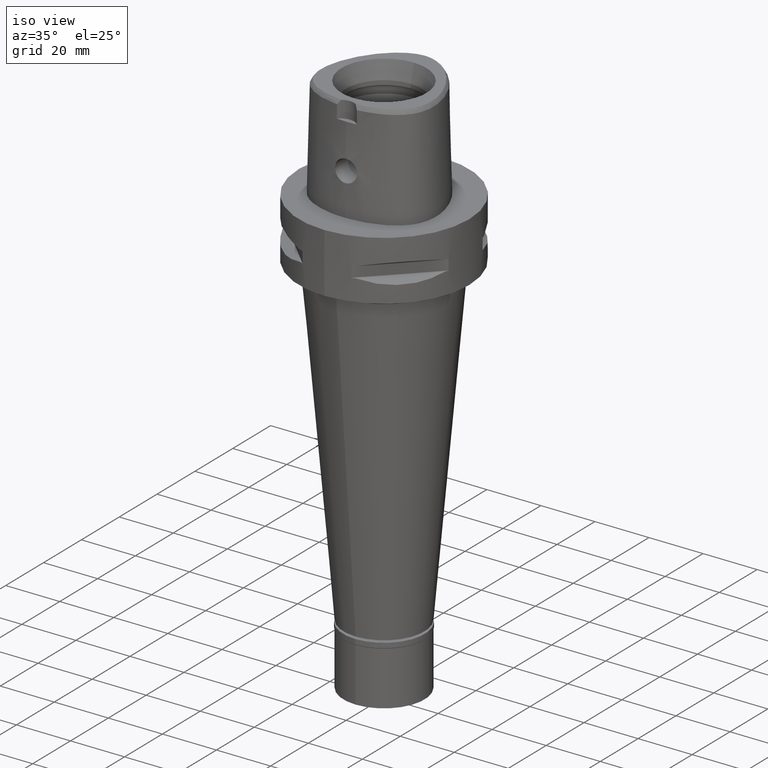
[diagram: clean part render]
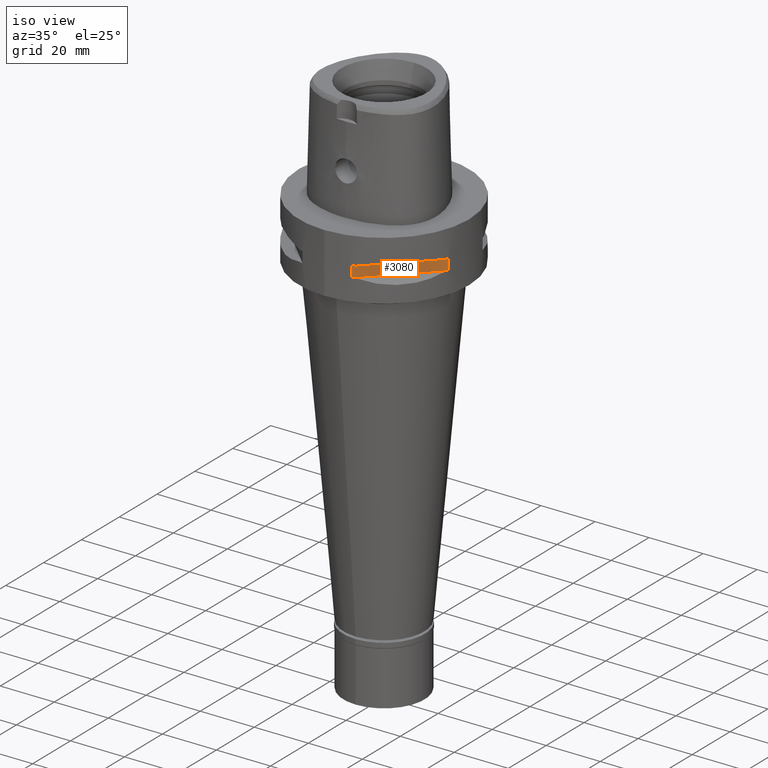
[diagram: same view with one face highlighted and labeled with its STEP entity id]
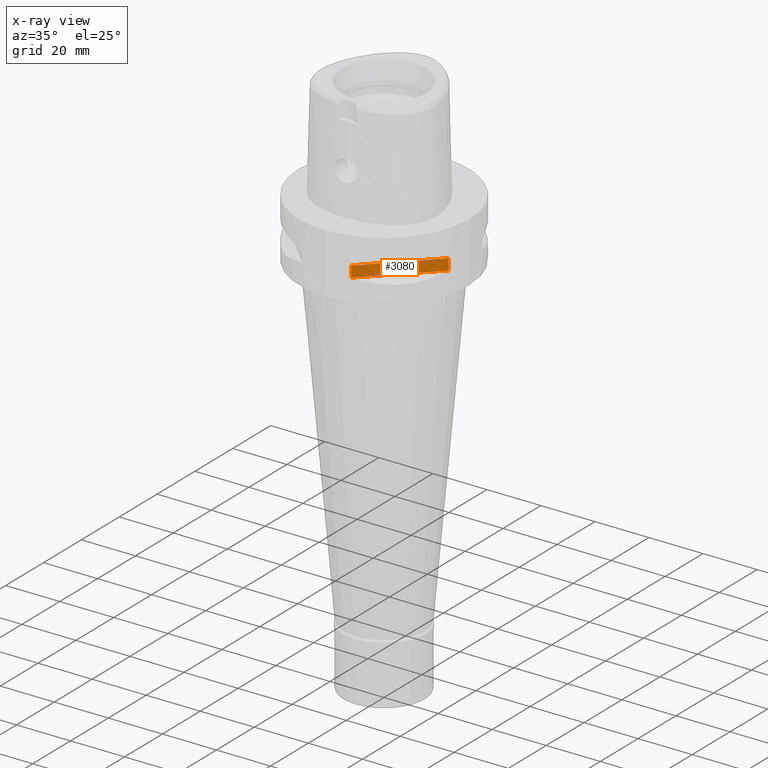
[diagram: x-ray of the same camera — body ghosted, the highlighted face saturated]
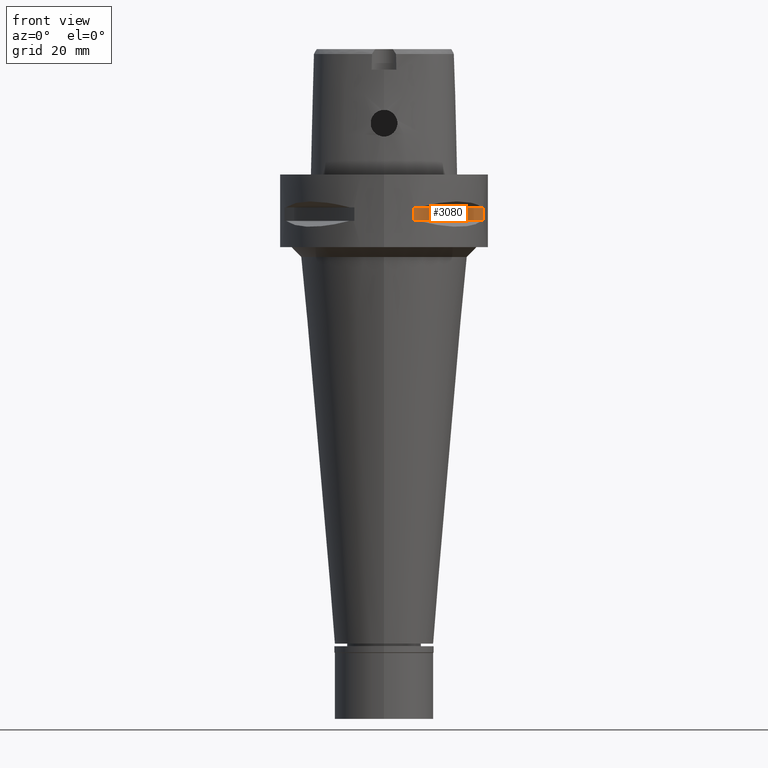
[diagram: same view with one face highlighted and labeled with its STEP entity id]
A machine part, iso view. The second image highlights one B-rep face of the part: STEP entity #3080.
The next image is the same camera in x-ray: the body ghosted, the highlighted face saturated — about 0% of this face is hidden behind the body in this view.
A second angle (front view) of the same face is appended — the face is thin or edge-on in the first view.
In plain terms, the highlighted planar face has unit normal (-0.7071, 0.7071, 0).
Its self-contained STEP definition (entity closure, byte-faithful):
#102 = VERTEX_POINT ( 'NONE', #2441 ) ;
#162 = VECTOR ( 'NONE', #4228, 1000.000000000000000 ) ;
#327 = ORIENTED_EDGE ( 'NONE', *, *, #4623, .F. ) ;
#813 = LINE ( 'NONE', #3086, #4734 ) ;
#912 = VECTOR ( 'NONE', #3252, 1000.000000000000114 ) ;
#1031 = DIRECTION ( 'NONE',  ( -0.7071067811865475727, 0.7071067811865475727, 0.0000000000000000000 ) ) ;
#1071 = AXIS2_PLACEMENT_3D ( 'NONE', #4126, #1031, #3008 ) ;
#1093 = CARTESIAN_POINT ( 'NONE',  ( 8.981198972019999616, -30.19251670572000279, -9.950000000000001066 ) ) ;
#1344 = DIRECTION ( 'NONE',  ( 0.7071067811865474617, 0.7071067811865474617, 0.0000000000000000000 ) ) ;
#1516 = VERTEX_POINT ( 'NONE', #4890 ) ;
#1542 = VECTOR ( 'NONE', #1344, 1000.000000000000114 ) ;
#2111 = EDGE_CURVE ( 'NONE', #1516, #102, #3652, .T. ) ;
#2118 = FACE_OUTER_BOUND ( 'NONE', #3788, .T. ) ;
#2441 = CARTESIAN_POINT ( 'NONE',  ( 30.19251670572000279, -8.981198972019999616, -14.05000000000000071 ) ) ;
#2471 = LINE ( 'NONE', #3963, #912 ) ;
#2572 = EDGE_CURVE ( 'NONE', #102, #4220, #813, .T. ) ;
#2815 = CARTESIAN_POINT ( 'NONE',  ( 8.981198972017999438, -30.19251670572000279, -14.05000000000000071 ) ) ;
#2832 = EDGE_CURVE ( 'NONE', #4881, #1516, #3020, .T. ) ;
#3008 = DIRECTION ( 'NONE',  ( 0.0000000000000000000, 0.0000000000000000000, 1.000000000000000000 ) ) ;
#3020 = LINE ( 'NONE', #3046, #162 ) ;
#3046 = CARTESIAN_POINT ( 'NONE',  ( 8.981198972017999438, -30.19251670572000279, -9.950000000000001066 ) ) ;
#3080 = ADVANCED_FACE ( 'NONE', ( #2118 ), #4098, .F. ) ;
#3086 = CARTESIAN_POINT ( 'NONE',  ( 30.19251670572000279, -8.981198972017999438, -14.05000000000000071 ) ) ;
#3252 = DIRECTION ( 'NONE',  ( 0.7071067811865474617, 0.7071067811865474617, 0.0000000000000000000 ) ) ;
#3564 = CARTESIAN_POINT ( 'NONE',  ( 30.19251670572000279, -8.981198972017999438, -9.950000000000001066 ) ) ;
#3652 = LINE ( 'NONE', #2815, #1542 ) ;
#3788 = EDGE_LOOP ( 'NONE', ( #327, #5019, #4815, #4592 ) ) ;
#3963 = CARTESIAN_POINT ( 'NONE',  ( 8.981198972017999438, -30.19251670572000279, -9.950000000000001066 ) ) ;
#4098 = PLANE ( 'NONE',  #1071 ) ;
#4126 = CARTESIAN_POINT ( 'NONE',  ( 33.72899346260000186, -5.444722215136000187, -9.950000000000001066 ) ) ;
#4220 = VERTEX_POINT ( 'NONE', #3564 ) ;
#4228 = DIRECTION ( 'NONE',  ( 0.0000000000000000000, 0.0000000000000000000, -1.000000000000000000 ) ) ;
#4592 = ORIENTED_EDGE ( 'NONE', *, *, #2572, .T. ) ;
#4623 = EDGE_CURVE ( 'NONE', #4881, #4220, #2471, .T. ) ;
#4682 = DIRECTION ( 'NONE',  ( 0.0000000000000000000, 0.0000000000000000000, 1.000000000000000000 ) ) ;
#4734 = VECTOR ( 'NONE', #4682, 1000.000000000000000 ) ;
#4815 = ORIENTED_EDGE ( 'NONE', *, *, #2111, .T. ) ;
#4881 = VERTEX_POINT ( 'NONE', #1093 ) ;
#4890 = CARTESIAN_POINT ( 'NONE',  ( 8.981198972017999438, -30.19251670572000279, -14.05000000000000071 ) ) ;
#5019 = ORIENTED_EDGE ( 'NONE', *, *, #2832, .T. ) ;